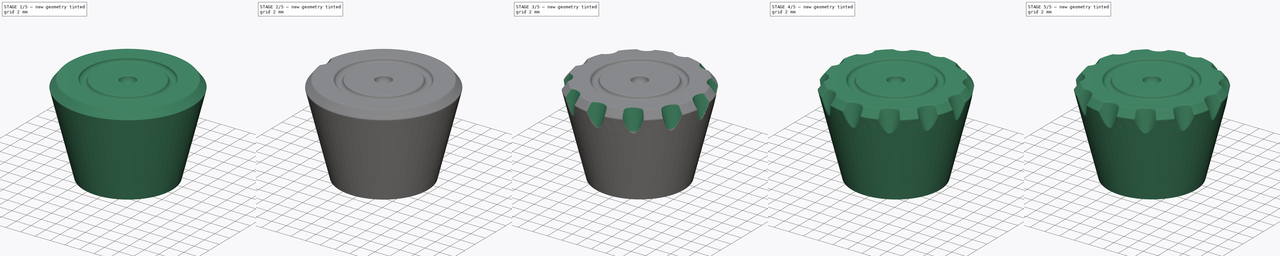
[diagram: build sequence overview — one tinted view per stage of 5, left to right]
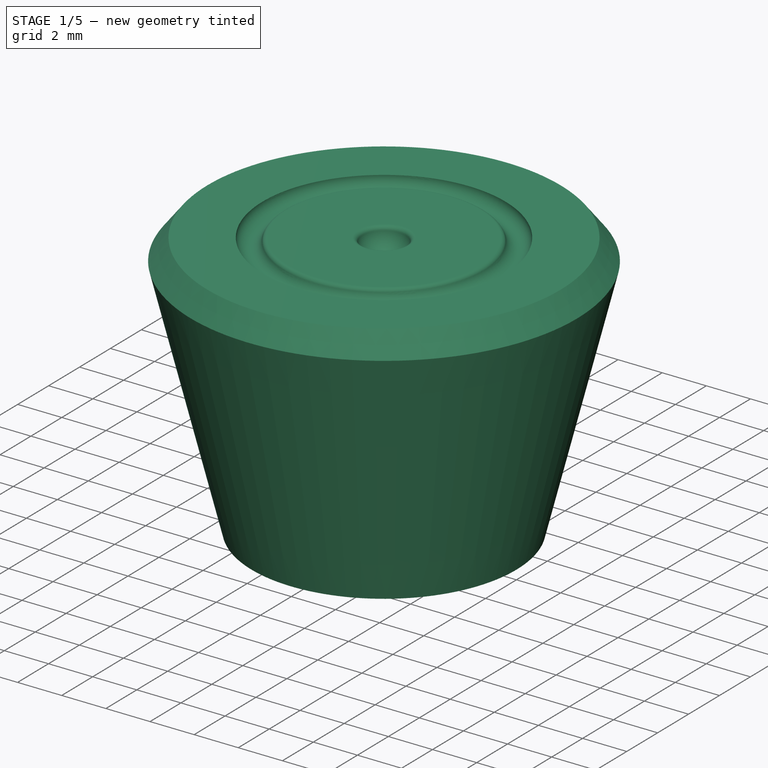
[diagram: stage 1 of 5 — iso view after this stage's code; geometry added in this stage tinted green]
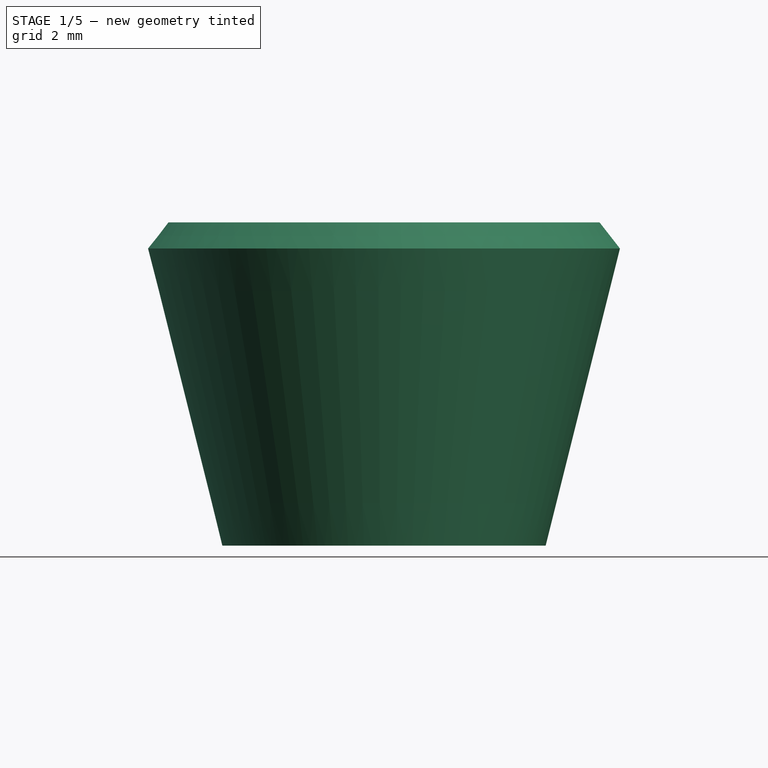
[diagram: stage 1 of 5 — front view after this stage's code; geometry added in this stage tinted green]
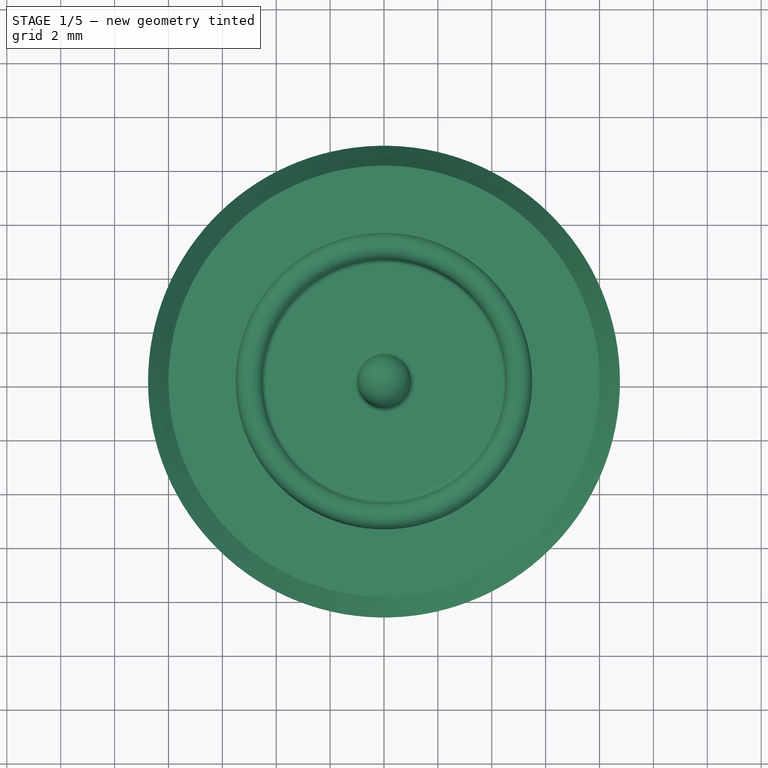
[diagram: stage 1 of 5 — top view after this stage's code; geometry added in this stage tinted green]
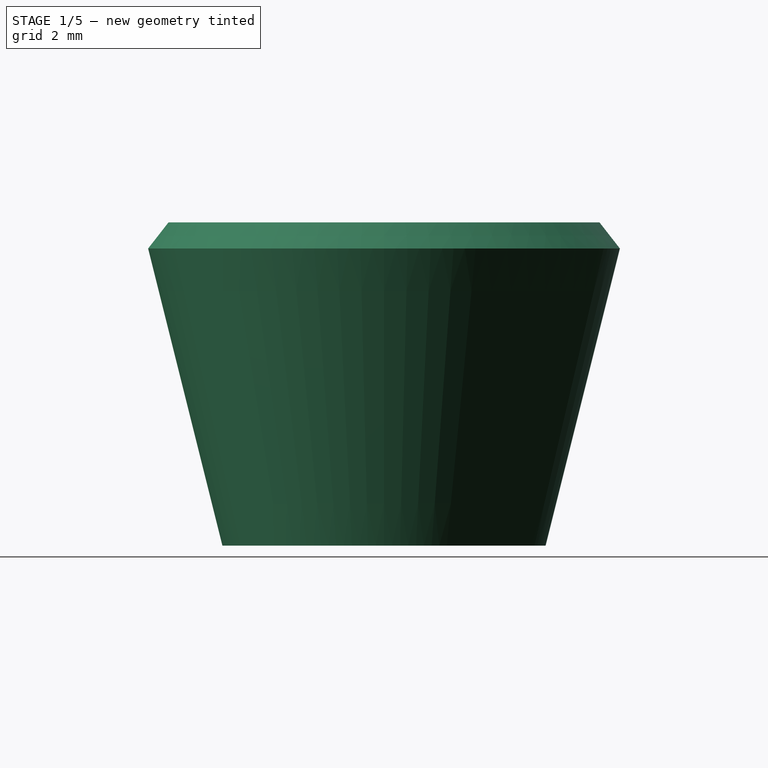
[diagram: stage 1 of 5 — right view after this stage's code; geometry added in this stage tinted green]
FCSTD DOCUMENT  (FreeCAD 0.18R4 (GitTag))
Label: p1
License: All rights reserved
LicenseURL: http://en.wikipedia.org/wiki/All_rights_reserved
objects: PartDesign::Fillet×17, Sketcher::SketchObject×2, PartDesign::Revolution×1, PartDesign::Chamfer×1, PartDesign::SubtractiveCone×1, PartDesign::PolarPattern×1, PartDesign::Body×1
note: 26 computed .brp shape members not serialized (recipe doc carries the construction recipe); baked Part::Feature solids carry a one-line shape summary decoded from their .brp

FEATURE [Sketcher::SketchObject] Sketch
  MapMode = 5
  Placement = pos=(0,0,0) rot=(1,0,0;1.5708rad)
  Support = -> [XZ_Plane]
  sketch-geometry (7):
    g0: LineSegment StartX=-2e-16 StartY=0 StartZ=0 EndX=-2e-16 EndY=11 EndZ=0
    g1: LineSegment StartX=-2e-16 StartY=0 StartZ=0 EndX=6 EndY=0 EndZ=0
    g2: LineSegment StartX=6 StartY=0 StartZ=0 EndX=9 EndY=12 EndZ=0
    g3: ArcOfCircle CenterX=0 CenterY=12 CenterZ=0 NormalX=0 NormalY=0 NormalZ=1 AngleXU=0 Radius=1 StartAngle=4.71239 EndAngle=6.28319
    g4: LineSegment StartX=1 StartY=12 StartZ=0 EndX=4.5 EndY=12 EndZ=0
    g5: ArcOfCircle CenterX=5 CenterY=12 CenterZ=0 NormalX=0 NormalY=0 NormalZ=1 AngleXU=0 Radius=0.5 StartAngle=3.14159 EndAngle=6.28319
    g6: LineSegment StartX=5.5 StartY=12 StartZ=0 EndX=9 EndY=12 EndZ=0
  constraints (22):
    c: Vertical(g0)
    c: Horizontal(g1)
    c: Coincident(g0,g-1)
    c: Coincident(g1,g0)
    c: Coincident(g2,g1)
    c: Distance(g0) = 11
    c: Distance(g1) = 6
    c: Coincident(g3,g0)
    c: DistanceX(g0,g3) = 0
    c: DistanceY(g3,g3) = 0
    c: Radius(g3) = 1
    c: Coincident(g4,g3)
    c: Horizontal(g4)
    c: Distance(g4) = 3.5
    c: Coincident(g5,g4)
    c: DistanceY(g5,g4) = 0
    c: DistanceY(g5,g5) = 0
    c: Radius(g5) = 0.5
    c: Coincident(g6,g5)
    c: Horizontal(g6)
    c: Distance(g6) = 3.5
    c: Coincident(g2,g6)
FEATURE [PartDesign::Revolution] Revolution
  Angle = 360
  Axis = (0,2e-16,1)
  Base = (0,0,0)
  Placement = pos=(0,0,0) rot=(1,0,0;1.5708rad)
  Profile = -> Sketch
  ReferenceAxis = -> Sketch [V_Axis]
  Reversed = true
FEATURE [PartDesign::Chamfer] Chamfer
  Base = -> Revolution [Edge7]
  BaseFeature = -> Revolution
  Placement = pos=(0,0,0) rot=(1,0,0;1.5708rad)
  Size = 1
FEATURE [PartDesign::Fillet] Fillet
  Base = -> Chamfer [Edge9]
  BaseFeature = -> Chamfer
  Placement = pos=(0,0,0) rot=(1,0,0;1.5708rad)
  Radius = 0.2
FEATURE [PartDesign::Fillet] Fillet001
  Base = -> Fillet [Edge2]
  BaseFeature = -> Fillet
  Placement = pos=(0,0,0) rot=(1,0,0;1.5708rad)
  Radius = 0.2
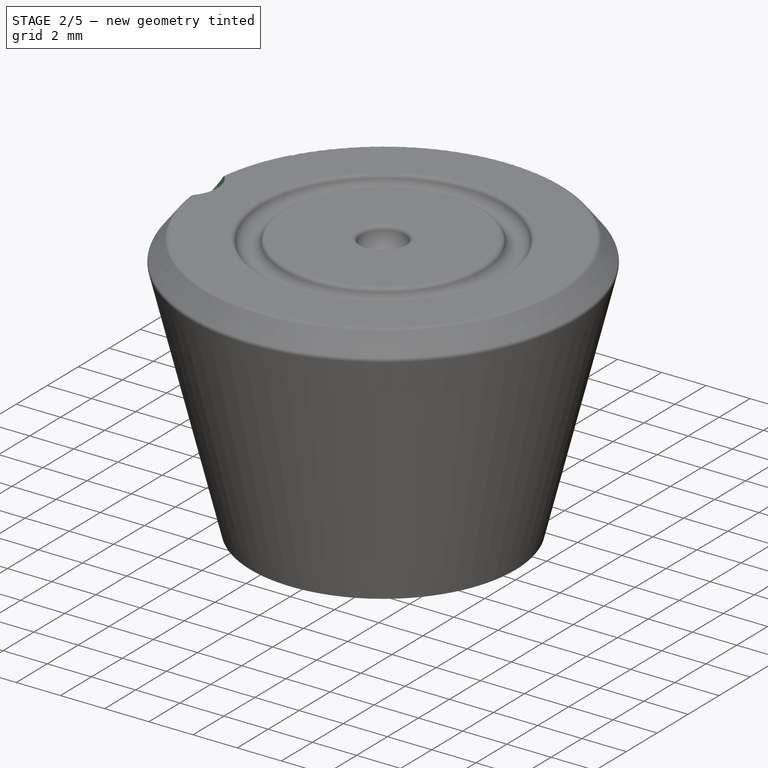
[diagram: stage 2 of 5 — iso view after this stage's code; geometry added in this stage tinted green]
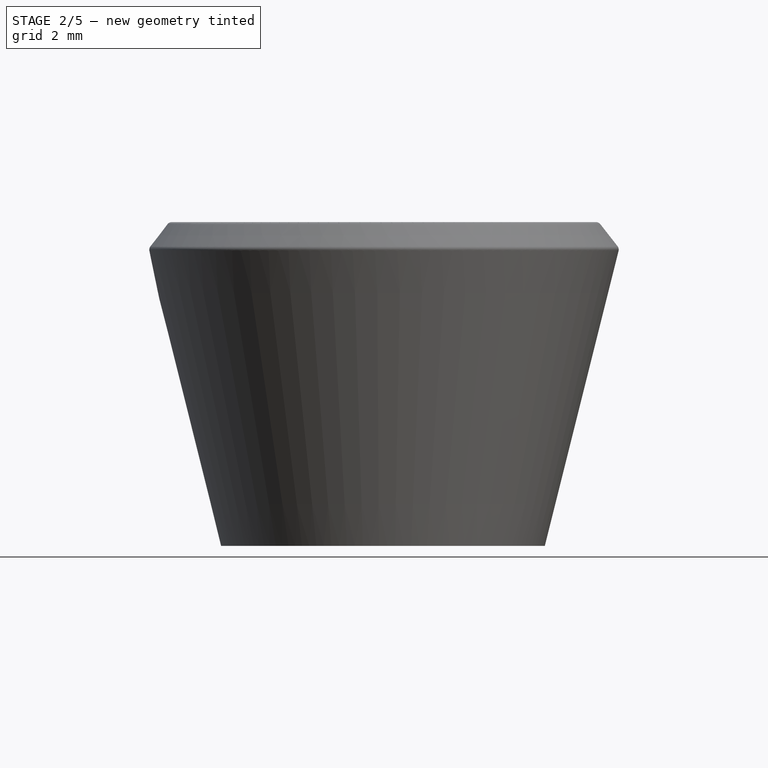
[diagram: stage 2 of 5 — front view after this stage's code; geometry added in this stage tinted green]
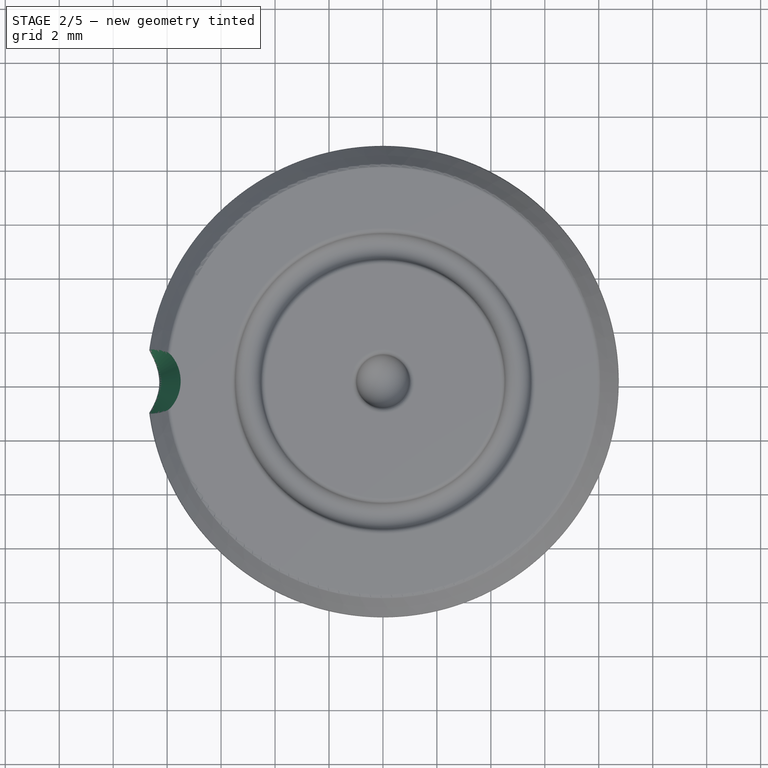
[diagram: stage 2 of 5 — top view after this stage's code; geometry added in this stage tinted green]
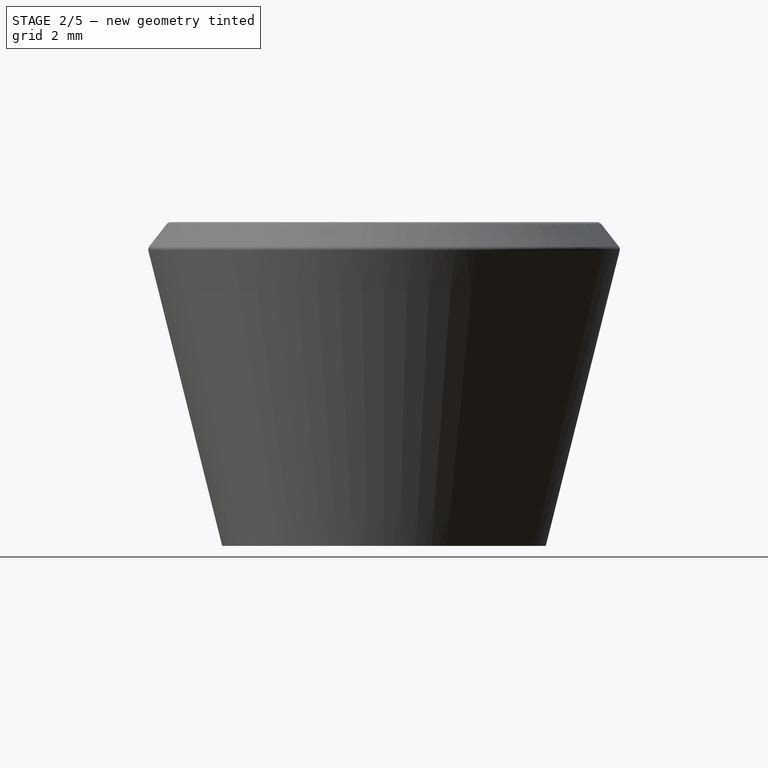
[diagram: stage 2 of 5 — right view after this stage's code; geometry added in this stage tinted green]
FEATURE [PartDesign::Fillet] Fillet002
  Base = -> Fillet001 [Edge8]
  BaseFeature = -> Fillet001
  Placement = pos=(0,0,0) rot=(1,0,0;1.5708rad)
  Radius = 0.2
FEATURE [PartDesign::Fillet] Fillet003
  Base = -> Fillet002 [Edge8]
  BaseFeature = -> Fillet002
  Placement = pos=(0,0,0) rot=(1,0,0;1.5708rad)
  Radius = 0.2
FEATURE [PartDesign::Fillet] Fillet004
  Base = -> Fillet003 [Edge8]
  BaseFeature = -> Fillet003
  Placement = pos=(0,0,0) rot=(1,0,0;1.5708rad)
  Radius = 0.2
FEATURE [Sketcher::SketchObject] Sketch001
  MapMode = 5
  Placement = pos=(0,8e-15,12) rot=(0,0,1;3.14159rad)
  Support = -> [Fillet004]
  sketch-geometry (1):
    g0: Circle CenterX=9 CenterY=0 CenterZ=0 NormalX=0 NormalY=0 NormalZ=1 AngleXU=0 Radius=1.5
  constraints (3):
    c: DistanceY(g-1,g0) = 0
    c: DistanceX(g-1,g0) = 9
    c: Radius(g0) = 1.5
FEATURE [PartDesign::SubtractiveCone] Cone
  Angle = 360
  AttacherType = Attacher::AttachEngine3D
  AttachmentOffset = pos=(0,0,-5.35) rot=(0,0,1;0rad)
  BaseFeature = -> Fillet004
  Height = 5.35
  MapMode = 11
  Placement = pos=(-9,4.4e-15,6.65) rot=(0,0,-1;1.5708rad)
  Radius1 = 0
  Radius2 = 1.5
  Support = -> [Sketch001]
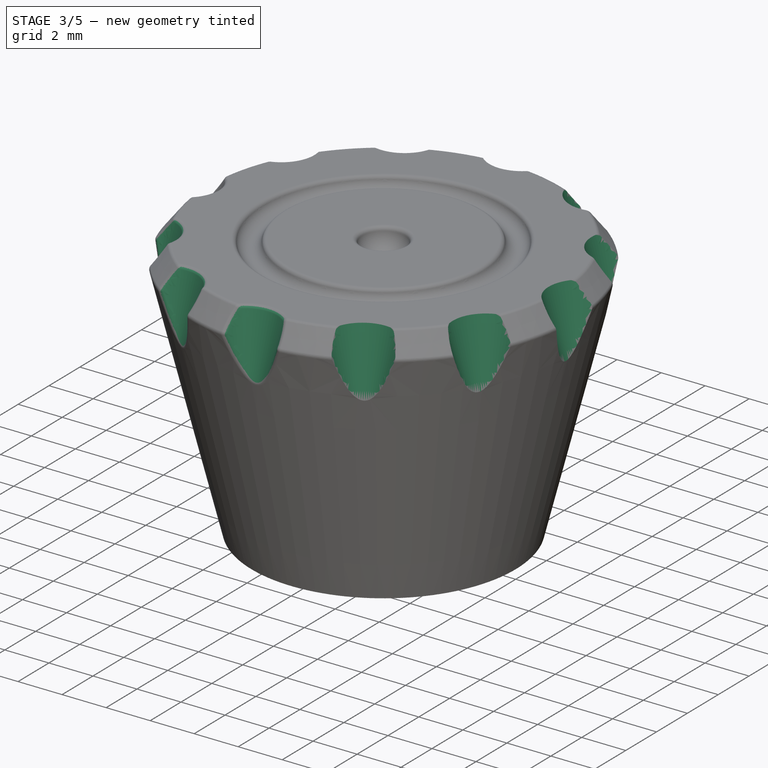
[diagram: stage 3 of 5 — iso view after this stage's code; geometry added in this stage tinted green]
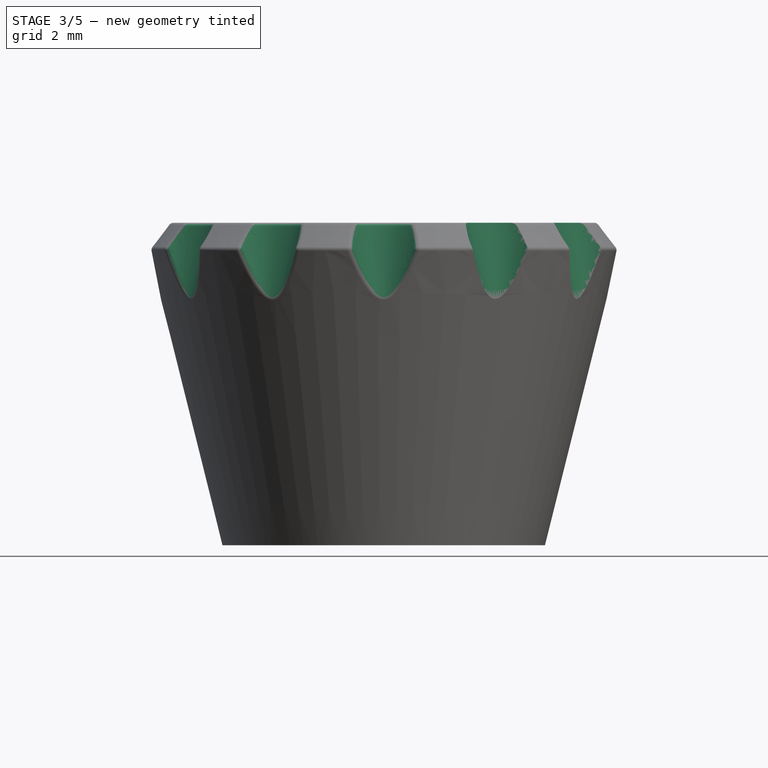
[diagram: stage 3 of 5 — front view after this stage's code; geometry added in this stage tinted green]
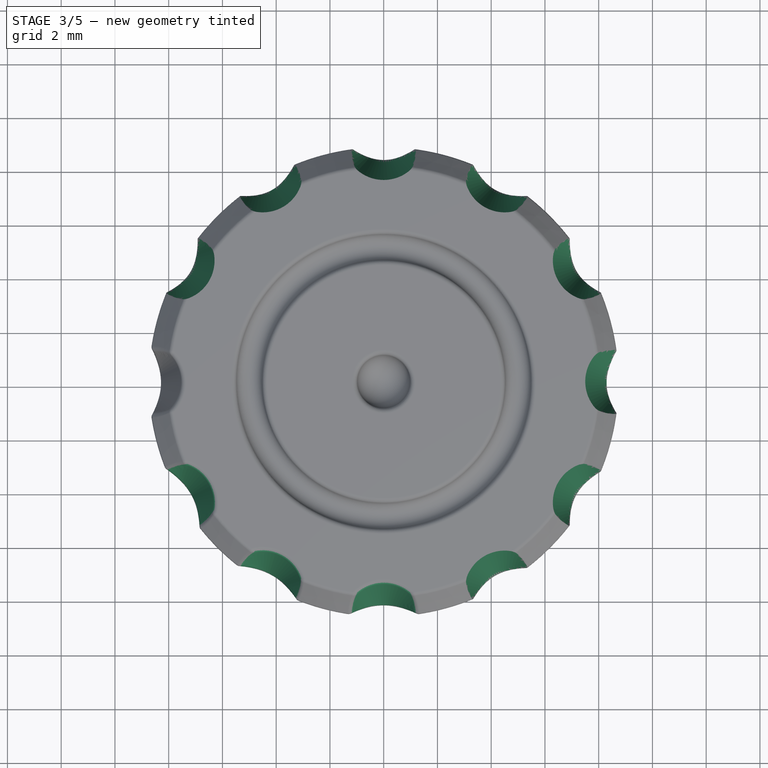
[diagram: stage 3 of 5 — top view after this stage's code; geometry added in this stage tinted green]
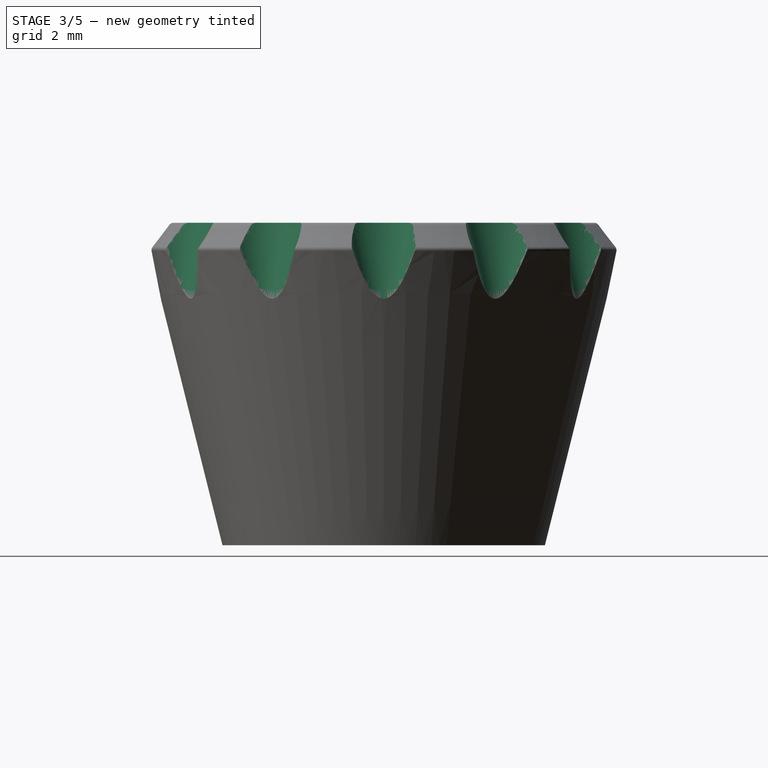
[diagram: stage 3 of 5 — right view after this stage's code; geometry added in this stage tinted green]
FEATURE [PartDesign::Fillet] Fillet005
  Base = -> Cone [Edge8]
  BaseFeature = -> Cone
  Placement = pos=(-9,4.4e-15,6.65) rot=(0,0,-1;1.5708rad)
  Radius = 0.2
FEATURE [PartDesign::PolarPattern] PolarPattern
  Angle = 360
  Axis = -> Z_Axis
  BaseFeature = -> Fillet005
  Occurrences = 12
  Originals = -> [Cone]
  Placement = pos=(-9,4.4e-15,6.65) rot=(0,0,-1;1.5708rad)
FEATURE [PartDesign::Fillet] Fillet006
  Base = -> PolarPattern [Edge105]
  BaseFeature = -> PolarPattern
  Placement = pos=(-9,4.4e-15,6.65) rot=(0,0,-1;1.5708rad)
  Radius = 0.2
FEATURE [PartDesign::Fillet] Fillet007
  Base = -> Fillet006 [Edge34]
  BaseFeature = -> Fillet006
  Placement = pos=(-9,4.4e-15,6.65) rot=(0,0,-1;1.5708rad)
  Radius = 0.2
FEATURE [PartDesign::Fillet] Fillet008
  Base = -> Fillet007 [Edge43]
  BaseFeature = -> Fillet007
  Placement = pos=(-9,4.4e-15,6.65) rot=(0,0,-1;1.5708rad)
  Radius = 0.2
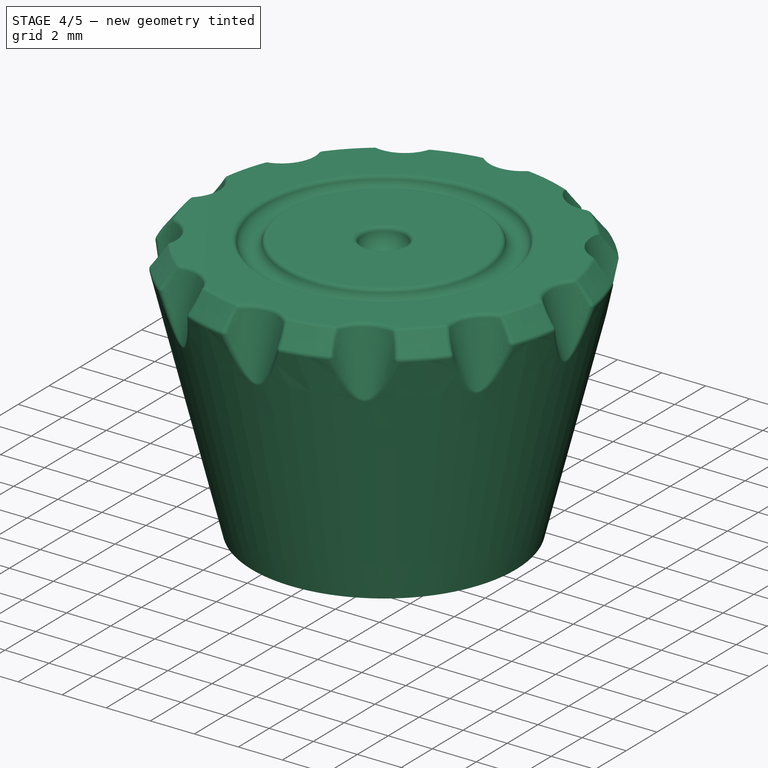
[diagram: stage 4 of 5 — iso view after this stage's code; geometry added in this stage tinted green]
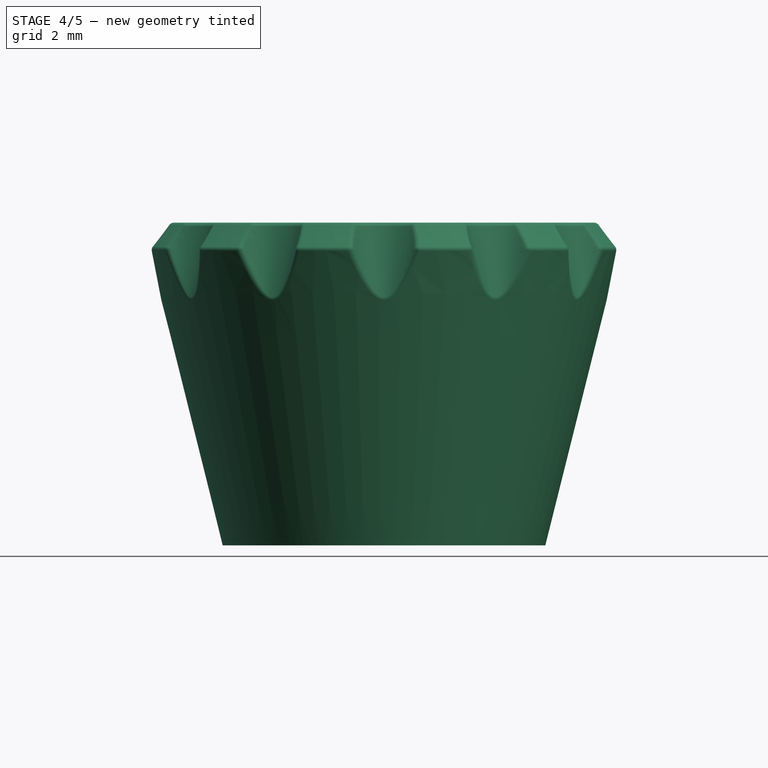
[diagram: stage 4 of 5 — front view after this stage's code; geometry added in this stage tinted green]
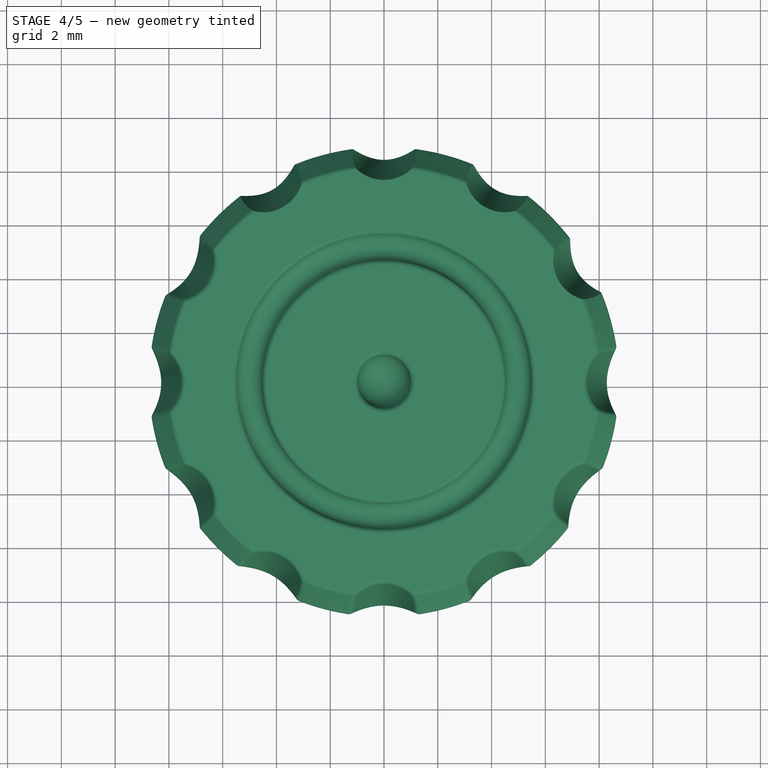
[diagram: stage 4 of 5 — top view after this stage's code; geometry added in this stage tinted green]
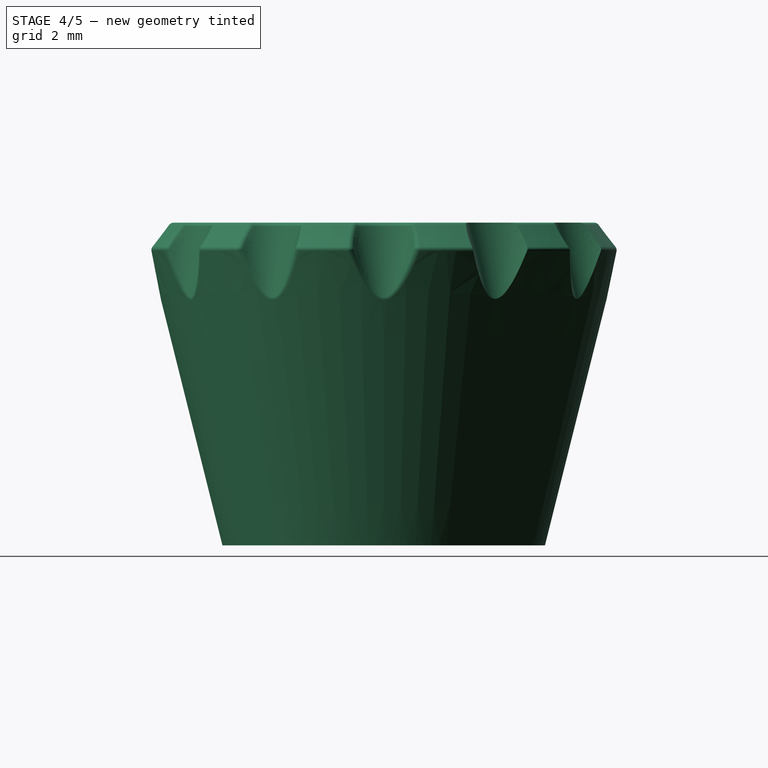
[diagram: stage 4 of 5 — right view after this stage's code; geometry added in this stage tinted green]
FEATURE [PartDesign::Fillet] Fillet009
  Base = -> Fillet008 [Edge43]
  BaseFeature = -> Fillet008
  Placement = pos=(-9,4.4e-15,6.65) rot=(0,0,-1;1.5708rad)
  Radius = 0.2
FEATURE [PartDesign::Fillet] Fillet010
  Base = -> Fillet009 [Edge43]
  BaseFeature = -> Fillet009
  Placement = pos=(-9,4.4e-15,6.65) rot=(0,0,-1;1.5708rad)
  Radius = 0.2
FEATURE [PartDesign::Fillet] Fillet011
  Base = -> Fillet010 [Edge43]
  BaseFeature = -> Fillet010
  Placement = pos=(-9,4.4e-15,6.65) rot=(0,0,-1;1.5708rad)
  Radius = 0.2
FEATURE [PartDesign::Fillet] Fillet012
  Base = -> Fillet011 [Edge111]
  BaseFeature = -> Fillet011
  Placement = pos=(-9,4.4e-15,6.65) rot=(0,0,-1;1.5708rad)
  Radius = 0.2
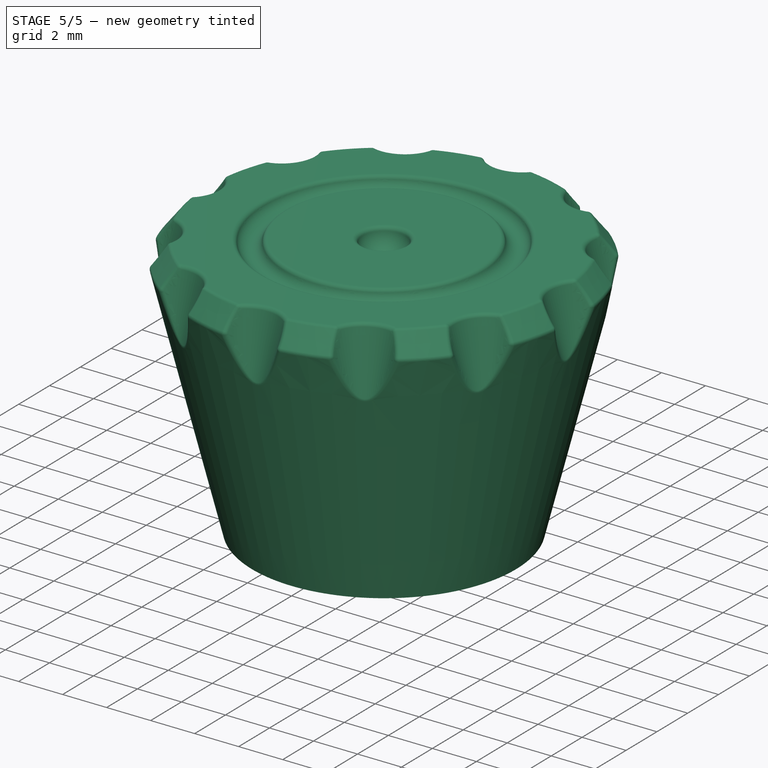
[diagram: stage 5 of 5 — iso view after this stage's code; geometry added in this stage tinted green]
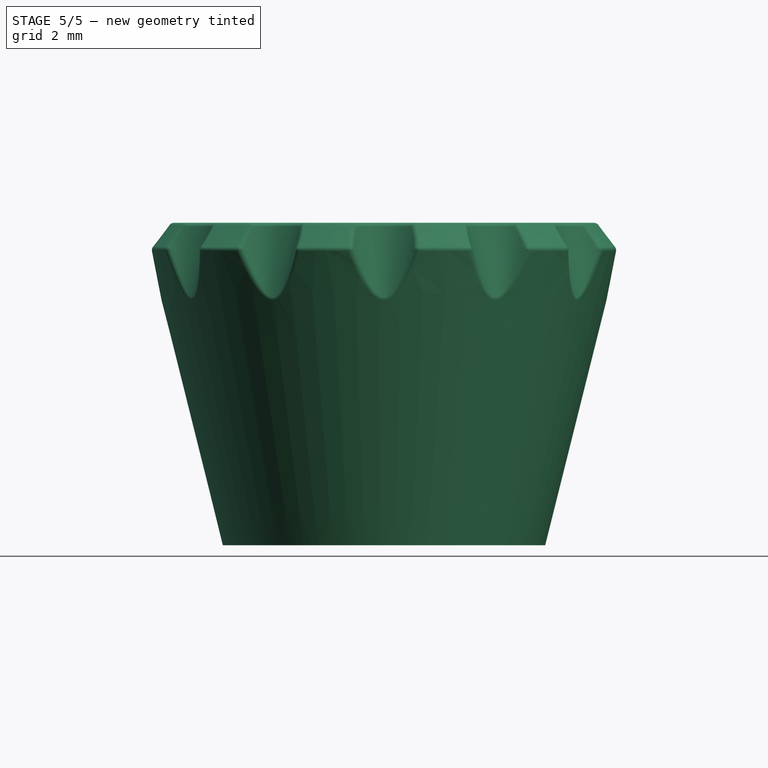
[diagram: stage 5 of 5 — front view after this stage's code; geometry added in this stage tinted green]
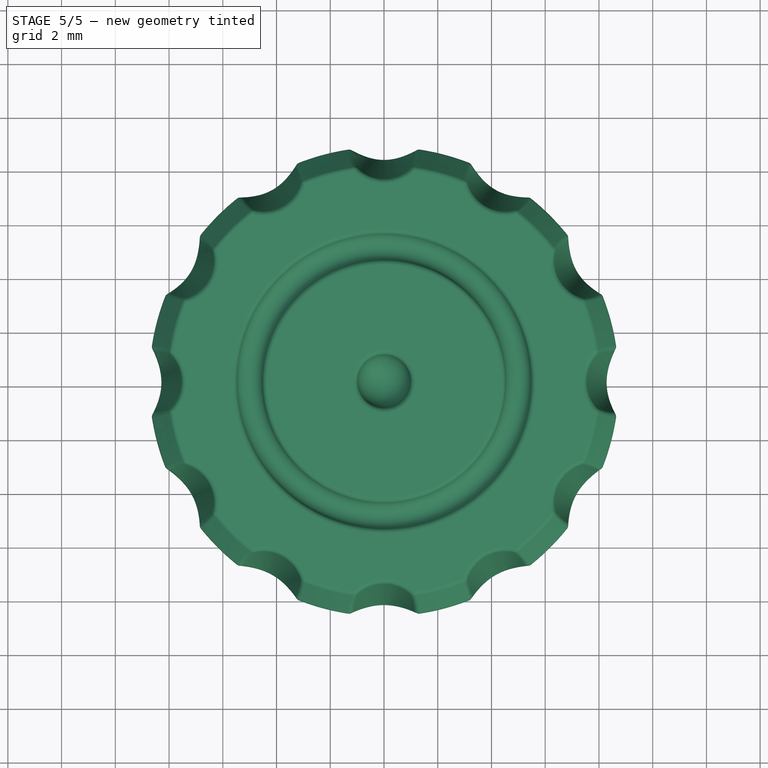
[diagram: stage 5 of 5 — top view after this stage's code; geometry added in this stage tinted green]
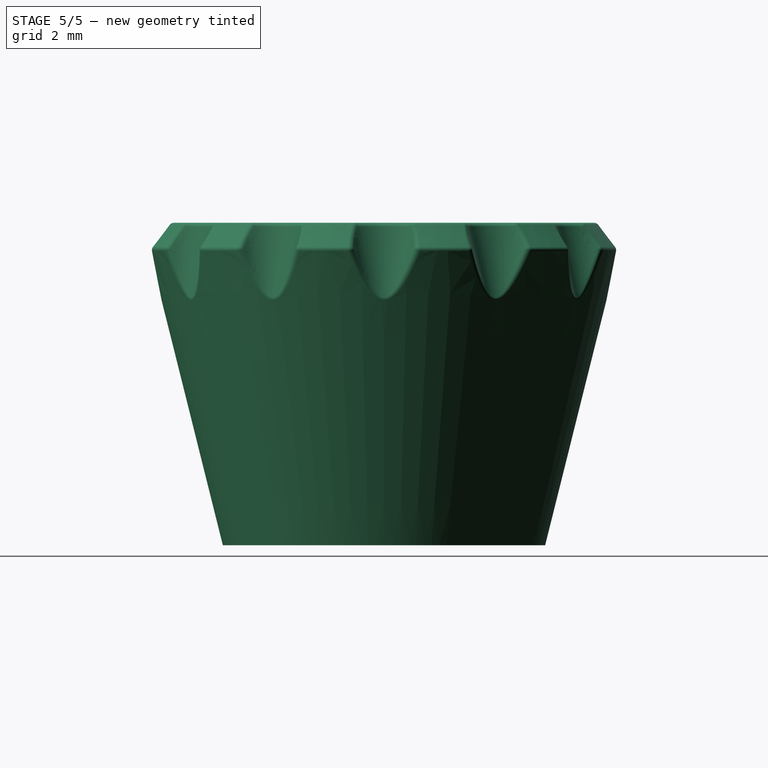
[diagram: stage 5 of 5 — right view after this stage's code; geometry added in this stage tinted green]
FEATURE [PartDesign::Fillet] Fillet013
  Base = -> Fillet012 [Edge43]
  BaseFeature = -> Fillet012
  Placement = pos=(-9,4.4e-15,6.65) rot=(0,0,-1;1.5708rad)
  Radius = 0.2
FEATURE [PartDesign::Fillet] Fillet014
  Base = -> Fillet013 [Edge43]
  BaseFeature = -> Fillet013
  Placement = pos=(-9,4.4e-15,6.65) rot=(0,0,-1;1.5708rad)
  Radius = 0.2
FEATURE [PartDesign::Fillet] Fillet015
  Base = -> Fillet014 [Edge43]
  BaseFeature = -> Fillet014
  Placement = pos=(-9,4.4e-15,6.65) rot=(0,0,-1;1.5708rad)
  Radius = 0.2
FEATURE [PartDesign::Fillet] Fillet016
  Base = -> Fillet015 [Edge43]
  BaseFeature = -> Fillet015
  Placement = pos=(-9,4.4e-15,6.65) rot=(0,0,-1;1.5708rad)
  Radius = 0.2
FEATURE [PartDesign::Body] Body
  Group = -> [Sketch,Revolution,Chamfer,Fillet,Fillet001,Fillet002,Fillet003,Fillet004,Sketch001,Cone,Fillet005,PolarPattern,Fillet006,Fillet007,Fillet008,Fillet009,Fillet010,Fillet011,Fillet012,Fillet013,Fillet014,Fillet015,Fillet016]
  Origin = -> Origin
  Tip = -> Fillet016
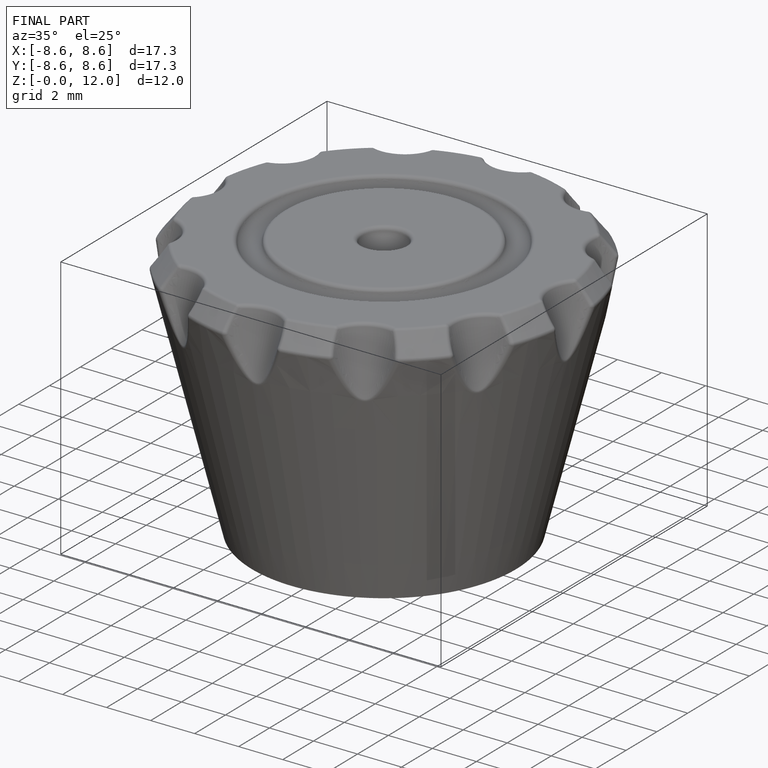
[diagram: finished part — iso view with bounding-box wireframe]
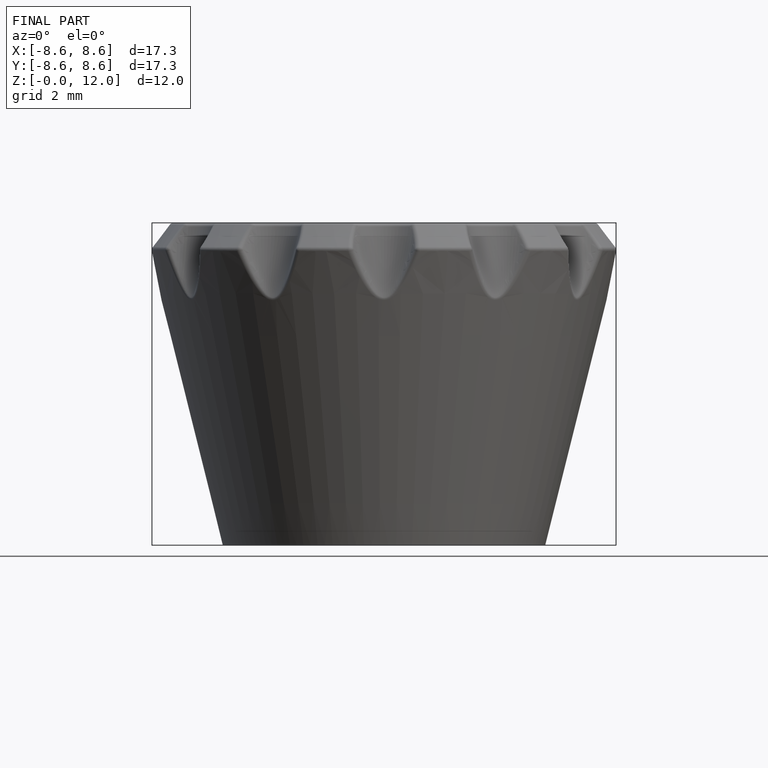
[diagram: finished part — front view with bounding-box wireframe]
